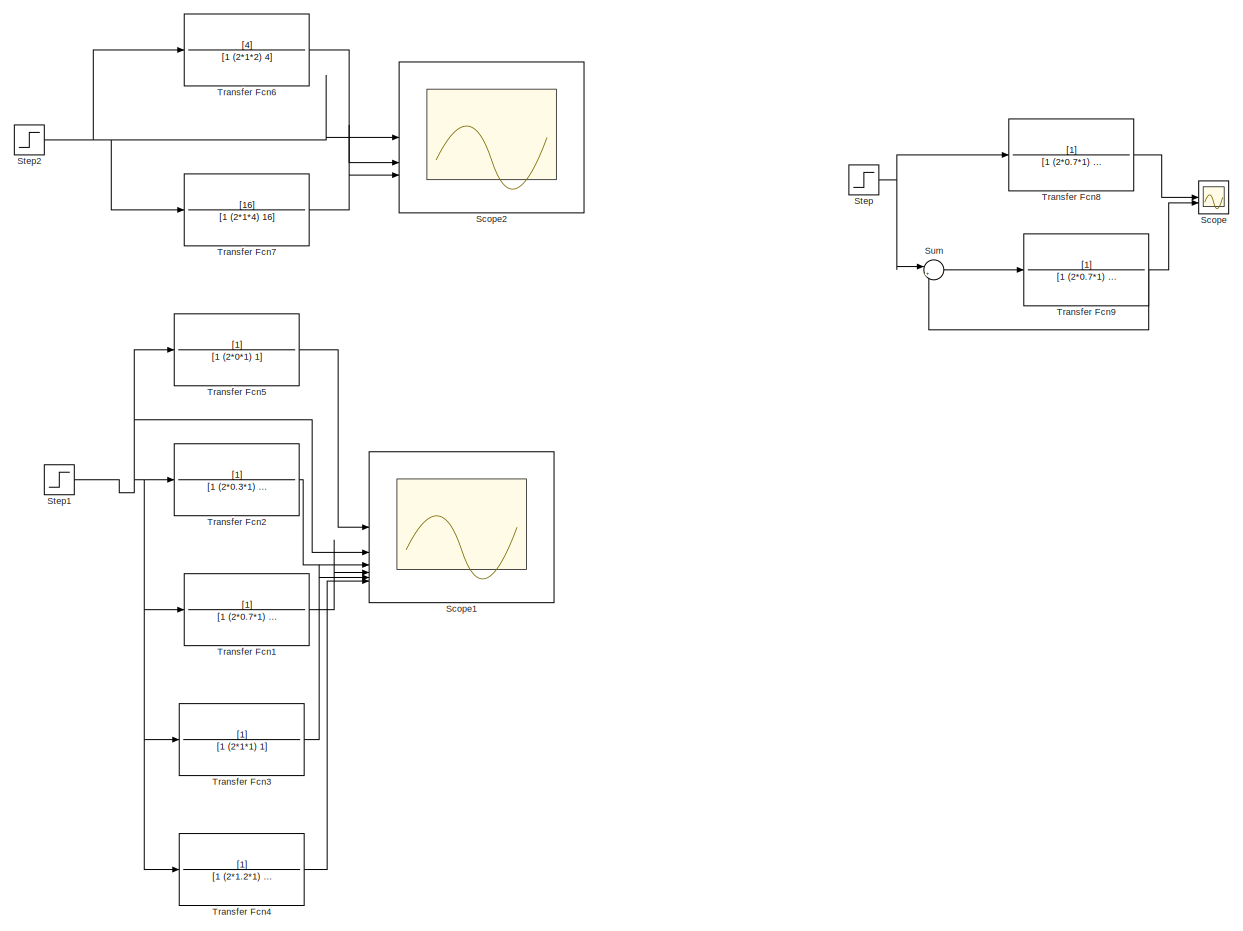
[diagram: root canvas - part 1/1, most of the canvas]
MODEL slx_0953bd77e26a
KIND model
CONFIG AbsTol = auto
CONFIG EnableMultiTasking = off
CONFIG FixedStep = auto
CONFIG MaxStep = auto
CONFIG MinStep = auto
CONFIG RelTol = 1e-3
CONFIG SampleTimeConstraint = Unconstrained
CONFIG SolverName = VariableStepAuto
CONFIG StartTime = 0.0
CONFIG StopTime = 10.0
BLOCK [Scope] Scope
  Floating = off
  NumInputPorts = 2
  ScopeSpecificationString = Simulink.scopes.TimeScopeBlockCfg('CurrentConfiguration', extmgr.ConfigurationSet(extmgr.Configuration('Core','General UI',true),extmgr.Configuration('Core','Source UI',true),extmgr.Configuration('Sources','WiredSimulink',true,'DataLoggingVariableName','ScopeData1'),extmgr.Configuration('Visuals','Time Domain',true,'SerializedDisplays',{struct('MinYLimReal','-0.13075','MaxYLimReal','1.17674','YLab...<+2081ch>
BLOCK [Scope] Scope1
  Floating = off
  NumInputPorts = 6
  ScopeSpecificationString = Simulink.scopes.TimeScopeBlockCfg('CurrentConfiguration', extmgr.ConfigurationSet(extmgr.Configuration('Core','General UI',true),extmgr.Configuration('Core','Source UI',true),extmgr.Configuration('Sources','WiredSimulink',true,'DataLoggingVariableName','ScopeData1'),extmgr.Configuration('Visuals','Time Domain',true,'SerializedDisplays',{struct('MinYLimReal','-0.2498','MaxYLimReal','2.24818','YLabe...<+1503ch>
BLOCK [Scope] Scope2
  Floating = off
  NumInputPorts = 6
  ScopeSpecificationString = Simulink.scopes.TimeScopeBlockCfg('CurrentConfiguration', extmgr.ConfigurationSet(extmgr.Configuration('Core','General UI',true),extmgr.Configuration('Core','Source UI',true),extmgr.Configuration('Sources','WiredSimulink',true),extmgr.Configuration('Visuals','Time Domain',true,'SerializedDisplays',{struct('MinYLimReal','-0.125','MaxYLimReal','1.125','YLabelReal','','MinYLimMag','0.00000','MaxYLimM...<+1467ch>
BLOCK [Step] Step
  SampleTime = 0
BLOCK [Step] Step1
  SampleTime = 0
BLOCK [Step] Step2
  SampleTime = 0
BLOCK [Sum] Sum
  Inputs = |+-
BLOCK [TransferFcn] Transfer Fcn1
  Denominator = [1 (2*0.7*1) 1]
BLOCK [TransferFcn] Transfer Fcn2
  Denominator = [1 (2*0.3*1) 1]
BLOCK [TransferFcn] Transfer Fcn3
  Denominator = [1 (2*1*1) 1]
BLOCK [TransferFcn] Transfer Fcn4
  Denominator = [1 (2*1.2*1) 1]
BLOCK [TransferFcn] Transfer Fcn5
  Denominator = [1 (2*0*1) 1]
BLOCK [TransferFcn] Transfer Fcn6
  Denominator = [1 (2*1*2) 4]
  Numerator = [4]
BLOCK [TransferFcn] Transfer Fcn7
  Denominator = [1 (2*1*4) 16]
  Numerator = [16]
BLOCK [TransferFcn] Transfer Fcn8
  Denominator = [1 (2*0.7*1) 1]
BLOCK [TransferFcn] Transfer Fcn9
  Denominator = [1 (2*0.7*1) 1]
NET Step1:1 -> Scope1:2, Transfer Fcn1:1, Transfer Fcn2:1, Transfer Fcn3:1, Transfer Fcn4:1, Transfer Fcn5:1
NET Step2:1 -> Scope2:1, Transfer Fcn6:1, Transfer Fcn7:1
NET Step:1 -> Sum:1, Transfer Fcn8:1
LINE Sum:1 -> Transfer Fcn9:1
LINE Transfer Fcn1:1 -> Scope1:4
LINE Transfer Fcn2:1 -> Scope1:3
LINE Transfer Fcn3:1 -> Scope1:5
LINE Transfer Fcn4:1 -> Scope1:6
LINE Transfer Fcn5:1 -> Scope1:1
LINE Transfer Fcn6:1 -> Scope2:2
LINE Transfer Fcn7:1 -> Scope2:3
LINE Transfer Fcn8:1 -> Scope:1
NET Transfer Fcn9:1 -> Scope:2, Sum:2
note: NET lines group one-source signal fan-out (src -> all destinations, sorted); 1:1 wires keep LINE
